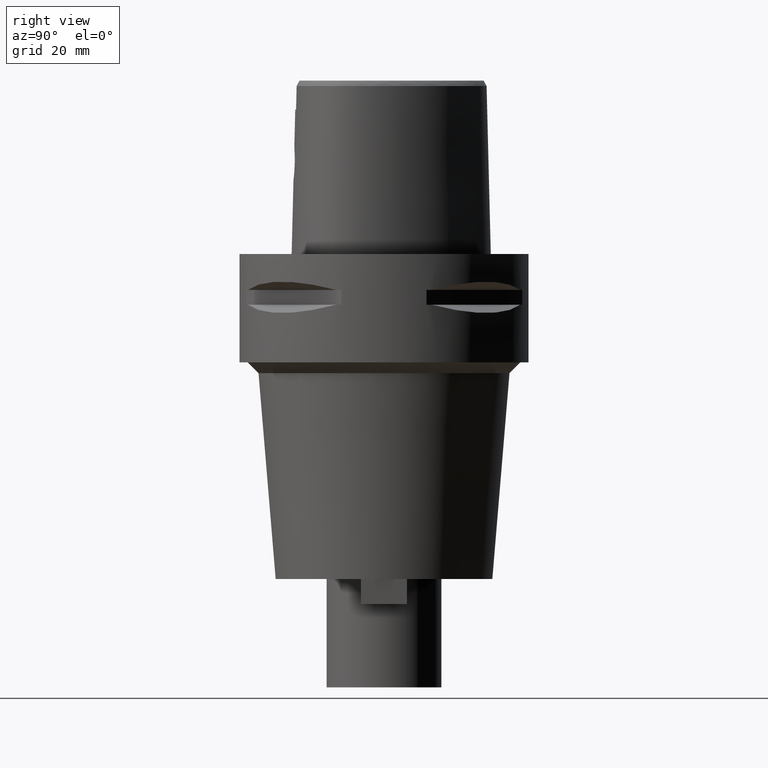
[diagram: clean part render]
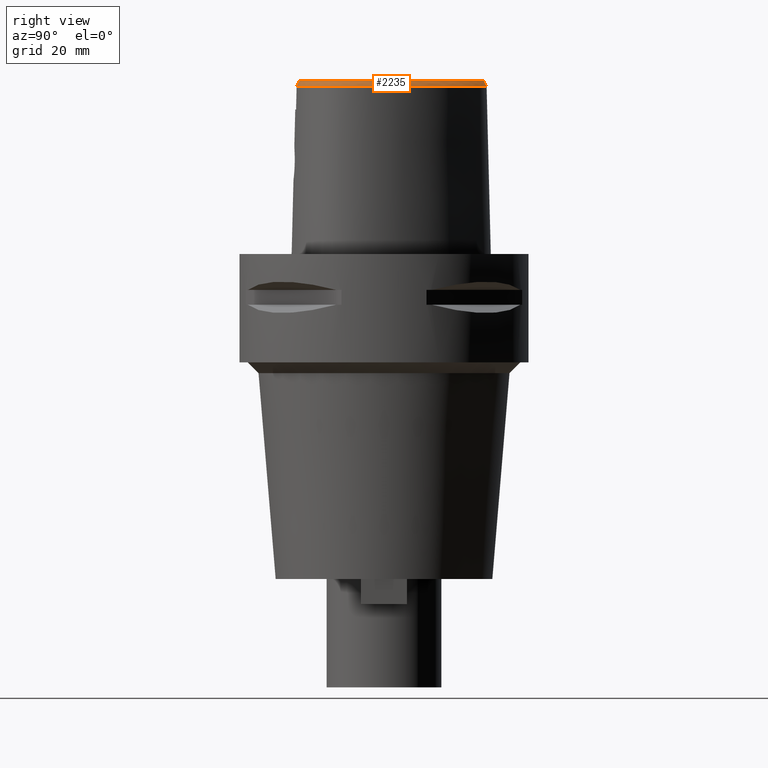
[diagram: same view with one face highlighted and labeled with its STEP entity id]
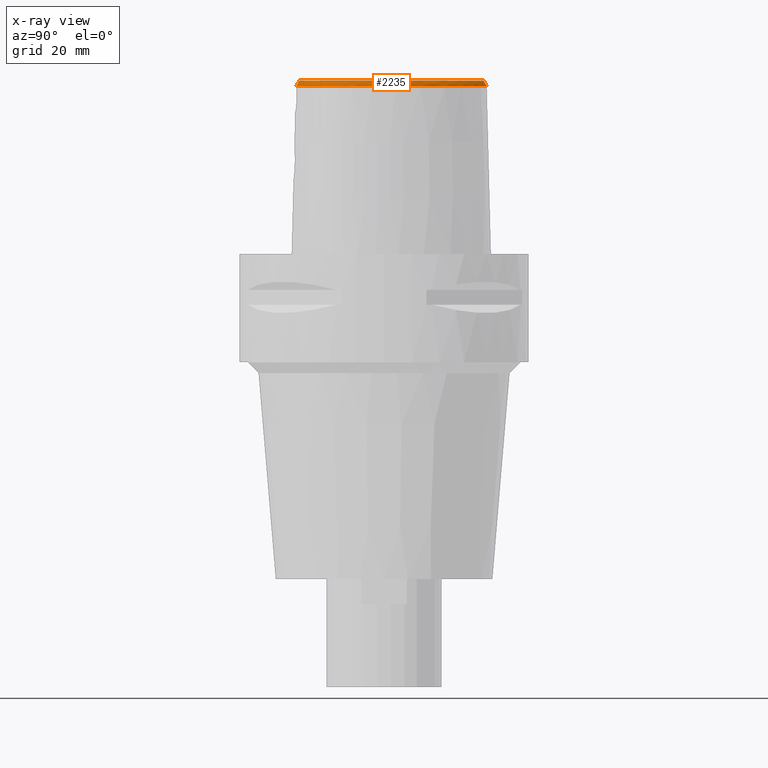
[diagram: x-ray of the same camera — body ghosted, the highlighted face saturated]
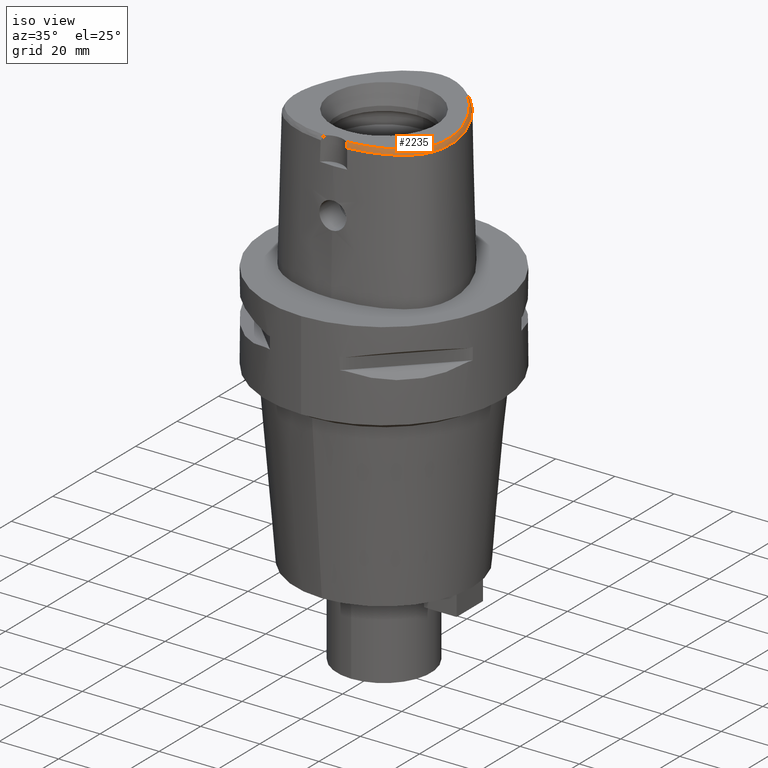
[diagram: same view with one face highlighted and labeled with its STEP entity id]
A machine part, right view. The second image highlights one B-rep face of the part: STEP entity #2235.
The next image is the same camera in x-ray: the body ghosted, the highlighted face saturated — about 0% of this face is hidden behind the body in this view.
A second angle (iso view) of the same face is appended — the face is thin or edge-on in the first view.
In plain terms, the highlighted face is a freeform B-spline surface patch.
Its self-contained STEP definition (entity closure, byte-faithful):
#65=CARTESIAN_POINT('',(-2.553408000942E-11,2.758331912251E1,4.8E1));
#70=CARTESIAN_POINT('',(-2.553408000942E-11,2.758331912251E1,4.8E1));
#71=CARTESIAN_POINT('',(4.326699493449E-1,2.758331912251E1,4.8E1));
#72=CARTESIAN_POINT('',(1.318485948688E0,2.753653647905E1,4.8E1));
#73=CARTESIAN_POINT('',(2.694254177754E0,2.731817935284E1,4.8E1));
#74=CARTESIAN_POINT('',(4.160281470665E0,2.693097800112E1,4.8E1));
#75=CARTESIAN_POINT('',(5.729899963728E0,2.634376294859E1,4.8E1));
#76=CARTESIAN_POINT('',(7.336892281381E0,2.556077075451E1,4.8E1));
#77=CARTESIAN_POINT('',(8.917380700256E0,2.461701550305E1,4.8E1));
#78=CARTESIAN_POINT('',(1.050505007378E1,2.349637574397E1,4.8E1));
#79=CARTESIAN_POINT('',(1.209768380610E1,2.219292851679E1,4.8E1));
#80=CARTESIAN_POINT('',(1.371622612238E1,2.067992734514E1,4.8E1));
#81=CARTESIAN_POINT('',(1.544240661434E1,1.884128891300E1,4.8E1));
#82=CARTESIAN_POINT('',(1.727354484628E1,1.660624915320E1,4.8E1));
#83=CARTESIAN_POINT('',(1.920166337709E1,1.387305823028E1,4.8E1));
#84=CARTESIAN_POINT('',(2.104405437824E1,1.077957101820E1,4.8E1));
#85=CARTESIAN_POINT('',(2.258310938534E1,7.663562332431E0,4.8E1));
#86=CARTESIAN_POINT('',(2.371743268842E1,4.864145325005E0,4.8E1));
#87=CARTESIAN_POINT('',(2.453549848259E1,2.372083781543E0,4.8E1));
#88=CARTESIAN_POINT('',(2.511277394399E1,1.251477481481E-1,4.8E1));
#89=CARTESIAN_POINT('',(2.550395460115E1,-1.958677323131E0,4.8E1));
#90=CARTESIAN_POINT('',(2.573345526789E1,-3.925286296897E0,4.8E1));
#91=CARTESIAN_POINT('',(2.581208330671E1,-5.793995830401E0,4.8E1));
#92=CARTESIAN_POINT('',(2.574079108837E1,-7.599200667665E0,4.8E1));
#93=CARTESIAN_POINT('',(2.551425080943E1,-9.310803689701E0,4.8E1));
#94=CARTESIAN_POINT('',(2.515505768593E1,-1.084039048168E1,4.8E1));
#95=CARTESIAN_POINT('',(2.468941085513E1,-1.219340370539E1,4.8E1));
#96=CARTESIAN_POINT('',(2.412882901727E1,-1.340338267525E1,4.8E1));
#97=CARTESIAN_POINT('',(2.346251357048E1,-1.451693224168E1,4.8E1));
#98=CARTESIAN_POINT('',(2.264600657251E1,-1.560517526553E1,4.8E1));
#99=CARTESIAN_POINT('',(2.165057333295E1,-1.668266342738E1,4.8E1));
#100=CARTESIAN_POINT('',(2.044142785332E1,-1.775361414779E1,4.8E1));
#101=CARTESIAN_POINT('',(1.901612716011E1,-1.878697767478E1,4.8E1));
#102=CARTESIAN_POINT('',(1.744537203737E1,-1.972385265193E1,4.8E1));
#103=CARTESIAN_POINT('',(1.575144000164E1,-2.056103779785E1,4.8E1));
#104=CARTESIAN_POINT('',(1.388329261355E1,-2.132182163839E1,4.8E1));
#105=CARTESIAN_POINT('',(1.182663184217E1,-2.200009909971E1,4.8E1));
#106=CARTESIAN_POINT('',(9.509725481074E0,-2.259942561262E1,4.8E1));
#107=CARTESIAN_POINT('',(6.839893559149E0,-2.310549683689E1,4.8E1));
#108=CARTESIAN_POINT('',(4.762005887127E0,-2.335207908269E1,4.8E1));
#109=CARTESIAN_POINT('',(3.652533226355E0,-2.343985283522E1,4.8E1));
#130=CARTESIAN_POINT('',(4.472216720977E0,-2.420009030094E1,4.652069014669E1));
#131=CARTESIAN_POINT('',(4.386326982763E0,-2.410405875216E1,4.670593579445E1));
#132=CARTESIAN_POINT('',(4.210394305266E0,-2.391982043133E1,4.706255578648E1));
#133=CARTESIAN_POINT('',(3.936814437014E0,-2.366714569074E1,4.755457133290E1));
#134=CARTESIAN_POINT('',(3.748088598607E0,-2.351317392384E1,4.785607960075E1));
#135=CARTESIAN_POINT('',(3.652533226355E0,-2.343985283522E1,4.8E1));
#140=CARTESIAN_POINT('',(-1.300493308120E-11,2.841206021535E1,
4.652071719451E1));
#141=CARTESIAN_POINT('',(4.537490213628E-1,2.841206021535E1,4.652071719450E1));
#142=CARTESIAN_POINT('',(1.359739333895E0,2.836561700399E1,4.652068492419E1));
#143=CARTESIAN_POINT('',(2.798416793316E0,2.814377461717E1,4.652072027706E1));
#144=CARTESIAN_POINT('',(4.307887639499E0,2.775346072855E1,4.652071723335E1));
#145=CARTESIAN_POINT('',(5.924869929827E0,2.716263044308E1,4.652072183319E1));
#146=CARTESIAN_POINT('',(7.606376726197E0,2.635846393509E1,4.652071705165E1));
#147=CARTESIAN_POINT('',(9.250372014650E0,2.538962292784E1,4.652072163652E1));
#148=CARTESIAN_POINT('',(1.088560491412E1,2.424857119092E1,4.652071905169E1));
#149=CARTESIAN_POINT('',(1.252185350330E1,2.292325989186E1,4.652072481974E1));
#150=CARTESIAN_POINT('',(1.417180752101E1,2.139586755219E1,4.652071606140E1));
#151=CARTESIAN_POINT('',(1.592374388296E1,1.954881059155E1,4.652071986469E1));
#152=CARTESIAN_POINT('',(1.778068836460E1,1.730764528431E1,4.652070834577E1));
#153=CARTESIAN_POINT('',(1.973862266516E1,1.456620010831E1,4.652071797701E1));
#154=CARTESIAN_POINT('',(2.161193685354E1,1.146764016300E1,4.652071565102E1));
#155=CARTESIAN_POINT('',(2.320306411494E1,8.305545696281E0,4.652071754653E1));
#156=CARTESIAN_POINT('',(2.439273893495E1,5.429171501733E0,4.652072067189E1));
#157=CARTESIAN_POINT('',(2.525400230633E1,2.867289822812E0,4.652071708657E1));
#158=CARTESIAN_POINT('',(2.587058895892E1,5.356714346136E-1,4.652071524526E1));
#159=CARTESIAN_POINT('',(2.628986553808E1,-1.616722991159E0,4.652071995117E1));
#160=CARTESIAN_POINT('',(2.654226288817E1,-3.645874536726E0,4.652071251050E1));
#161=CARTESIAN_POINT('',(2.664069955943E1,-5.588996615923E0,4.652072284657E1));
#162=CARTESIAN_POINT('',(2.658231647953E1,-7.487839499206E0,4.652071787861E1));
#163=CARTESIAN_POINT('',(2.636242864393E1,-9.277335918253E0,4.652071674685E1));
#164=CARTESIAN_POINT('',(2.600546970369E1,-1.087971050716E1,4.652072175201E1));
#165=CARTESIAN_POINT('',(2.553598679842E1,-1.230721928929E1,4.652071313457E1));
#166=CARTESIAN_POINT('',(2.496411661943E1,-1.359437090237E1,4.652075888368E1));
#167=CARTESIAN_POINT('',(2.428343664836E1,-1.477858436888E1,4.652070986822E1));
#168=CARTESIAN_POINT('',(2.346248453319E1,-1.591632656551E1,4.652072011288E1));
#169=CARTESIAN_POINT('',(2.246581338304E1,-1.703985358332E1,4.652071692565E1));
#170=CARTESIAN_POINT('',(2.126821125574E1,-1.814765548893E1,4.652072040874E1));
#171=CARTESIAN_POINT('',(1.983956133964E1,-1.923330405129E1,4.652072026418E1));
#172=CARTESIAN_POINT('',(1.823083362510E1,-2.023730442068E1,4.652071810262E1));
#173=CARTESIAN_POINT('',(1.650513375439E1,-2.112762786541E1,4.652071766772E1));
#174=CARTESIAN_POINT('',(1.462294012880E1,-2.192950778602E1,4.652071724727E1));
#175=CARTESIAN_POINT('',(1.256100400051E1,-2.264450389677E1,4.652072051589E1));
#176=CARTESIAN_POINT('',(1.025773522757E1,-2.327676388824E1,4.652070395409E1));
#177=CARTESIAN_POINT('',(7.624517635560E0,-2.381786584128E1,4.652074908391E1));
#178=CARTESIAN_POINT('',(5.565499563370E0,-2.409543509559E1,4.652064983366E1));
#179=CARTESIAN_POINT('',(4.472216720977E0,-2.420009030094E1,4.652069014669E1));
#238=DIRECTION('',(-7.389172820926E-12,-4.887572309465E-1,8.724198353989E-1));
#239=VECTOR('',#238,1.695608863382E0);
#240=CARTESIAN_POINT('',(-1.300493308120E-11,2.841206021535E1,
4.652071719451E1));
#241=LINE('',#240,#239);
#1704=CARTESIAN_POINT('',(3.652533226356E0,-2.343985283522E1,4.8E1));
#1706=VERTEX_POINT('',#1704);
#1708=VERTEX_POINT('',#65);
#1713=VERTEX_POINT('',#130);
#1718=CARTESIAN_POINT('',(-1.300493308120E-11,2.841206021535E1,
4.652071719451E1));
#1719=VERTEX_POINT('',#1718);
#1950=CARTESIAN_POINT('',(2.877077378759E0,-2.337490097326E1,4.821314349E1));
#1951=CARTESIAN_POINT('',(2.899149034166E0,-2.373007464683E1,4.757794447065E1));
#1952=CARTESIAN_POINT('',(2.921220689572E0,-2.408524832039E1,4.694274545131E1));
#1953=CARTESIAN_POINT('',(2.943292344979E0,-2.444042199395E1,4.630754643196E1));
#1954=CARTESIAN_POINT('',(3.133418777634E0,-2.335897003059E1,4.821314347594E1));
#1955=CARTESIAN_POINT('',(3.157483771768E0,-2.371401984391E1,4.757794449848E1));
#1956=CARTESIAN_POINT('',(3.181548765901E0,-2.406906965723E1,4.694274552102E1));
#1957=CARTESIAN_POINT('',(3.205613760035E0,-2.442411947055E1,4.630754654355E1));
#1958=CARTESIAN_POINT('',(3.431469930344E0,-2.333792076485E1,4.821314346343E1));
#1959=CARTESIAN_POINT('',(3.457865005835E0,-2.369280615106E1,4.757794452325E1));
#1960=CARTESIAN_POINT('',(3.484260081325E0,-2.404769153728E1,4.694274558307E1));
#1961=CARTESIAN_POINT('',(3.510655156816E0,-2.440257692349E1,4.630754664289E1));
#1962=CARTESIAN_POINT('',(4.347585608336E0,-2.326413929380E1,4.821314344601E1));
#1963=CARTESIAN_POINT('',(4.381194795003E0,-2.361844381190E1,4.757794455773E1));
#1964=CARTESIAN_POINT('',(4.414803981669E0,-2.397274832999E1,4.694274566945E1));
#1965=CARTESIAN_POINT('',(4.448413168336E0,-2.432705284809E1,4.630754678116E1));
#1966=CARTESIAN_POINT('',(5.613441158364E0,-2.313368819173E1,4.821314349178E1));
#1967=CARTESIAN_POINT('',(5.657186243861E0,-2.348695216029E1,4.757794446711E1));
#1968=CARTESIAN_POINT('',(5.700931329358E0,-2.384021612884E1,4.694274544244E1));
#1969=CARTESIAN_POINT('',(5.744676414855E0,-2.419348009739E1,4.630754641777E1));
#1970=CARTESIAN_POINT('',(7.376542017873E0,-2.287701674675E1,4.821314368182E1));
#1971=CARTESIAN_POINT('',(7.435073181152E0,-2.322813647288E1,4.757794409079E1));
#1972=CARTESIAN_POINT('',(7.493604344430E0,-2.357925619901E1,4.694274449976E1));
#1973=CARTESIAN_POINT('',(7.552135507708E0,-2.393037592514E1,4.630754490874E1));
#1974=CARTESIAN_POINT('',(9.055029356238E0,-2.255959982815E1,4.821314367308E1));
#1975=CARTESIAN_POINT('',(9.128452677003E0,-2.290791317061E1,4.757794410811E1));
#1976=CARTESIAN_POINT('',(9.201875997769E0,-2.325622651307E1,4.694274454314E1));
#1977=CARTESIAN_POINT('',(9.275299318534E0,-2.360453985554E1,4.630754497816E1));
#1978=CARTESIAN_POINT('',(1.063926033261E1,-2.218889152483E1,4.821314367366E1));
#1979=CARTESIAN_POINT('',(1.072766491918E1,-2.253371102444E1,4.757794410696E1));
#1980=CARTESIAN_POINT('',(1.081606950574E1,-2.287853052405E1,4.694274454026E1));
#1981=CARTESIAN_POINT('',(1.090447409231E1,-2.322335002367E1,4.630754497357E1));
#1982=CARTESIAN_POINT('',(1.212210713277E1,-2.177282449616E1,4.821314362558E1));
#1983=CARTESIAN_POINT('',(1.222560473223E1,-2.211342263293E1,4.757794420215E1));
#1984=CARTESIAN_POINT('',(1.232910233169E1,-2.245402076969E1,4.694274477873E1));
#1985=CARTESIAN_POINT('',(1.243259993115E1,-2.279461890645E1,4.630754535530E1));
#1986=CARTESIAN_POINT('',(1.350107407695E1,-2.131885530253E1,4.821314363031E1));
#1987=CARTESIAN_POINT('',(1.361973313876E1,-2.165447742461E1,4.757794419279E1));
#1988=CARTESIAN_POINT('',(1.373839220058E1,-2.199009954669E1,4.694274475527E1));
#1989=CARTESIAN_POINT('',(1.385705126239E1,-2.232572166878E1,4.630754531774E1));
#1990=CARTESIAN_POINT('',(1.477482726810E1,-2.083448902978E1,4.821314367376E1));
#1991=CARTESIAN_POINT('',(1.490872777902E1,-2.116433227117E1,4.757794410677E1));
#1992=CARTESIAN_POINT('',(1.504262828994E1,-2.149417551257E1,4.694274453978E1));
#1993=CARTESIAN_POINT('',(1.517652880086E1,-2.182401875397E1,4.630754497279E1));
#1994=CARTESIAN_POINT('',(1.594673450861E1,-2.032560094156E1,4.821314361691E1));
#1995=CARTESIAN_POINT('',(1.609589465790E1,-2.064883584555E1,4.757794421934E1));
#1996=CARTESIAN_POINT('',(1.624505480720E1,-2.097207074954E1,4.694274482176E1));
#1997=CARTESIAN_POINT('',(1.639421495649E1,-2.129530565354E1,4.630754542419E1));
#1998=CARTESIAN_POINT('',(1.702032778744E1,-1.979783233487E1,4.821314367253E1));
#1999=CARTESIAN_POINT('',(1.718473352495E1,-2.011359267157E1,4.757794410920E1));
#2000=CARTESIAN_POINT('',(1.734913926246E1,-2.042935300827E1,4.694274454586E1));
#2001=CARTESIAN_POINT('',(1.751354499997E1,-2.074511334496E1,4.630754498253E1));
#2002=CARTESIAN_POINT('',(1.799994924241E1,-1.925609447241E1,4.821314363726E1));
#2003=CARTESIAN_POINT('',(1.817955883948E1,-1.956346788874E1,4.757794417901E1));
#2004=CARTESIAN_POINT('',(1.835916843654E1,-1.987084130506E1,4.694274472076E1));
#2005=CARTESIAN_POINT('',(1.853877803361E1,-2.017821472138E1,4.630754526252E1));
#2006=CARTESIAN_POINT('',(1.889247133869E1,-1.870347183733E1,4.821314355822E1));
#2007=CARTESIAN_POINT('',(1.908714061617E1,-1.900154212225E1,4.757794433553E1));
#2008=CARTESIAN_POINT('',(1.928180989365E1,-1.929961240718E1,4.694274511283E1));
#2009=CARTESIAN_POINT('',(1.947647917113E1,-1.959768269210E1,4.630754589013E1));
#2010=CARTESIAN_POINT('',(1.970314547474E1,-1.814333099006E1,4.821314362184E1));
#2011=CARTESIAN_POINT('',(1.991268445821E1,-1.843115024533E1,4.757794420955E1));
#2012=CARTESIAN_POINT('',(2.012222344167E1,-1.871896950061E1,4.694274479725E1));
#2013=CARTESIAN_POINT('',(2.033176242513E1,-1.900678875589E1,4.630754538495E1));
#2014=CARTESIAN_POINT('',(2.043732325212E1,-1.757838147683E1,4.821314369526E1));
#2015=CARTESIAN_POINT('',(2.066147770410E1,-1.785497787629E1,4.757794406418E1));
#2016=CARTESIAN_POINT('',(2.088563215608E1,-1.813157427575E1,4.694274443310E1));
#2017=CARTESIAN_POINT('',(2.110978660806E1,-1.840817067521E1,4.630754480202E1));
#2018=CARTESIAN_POINT('',(2.110145602865E1,-1.700978291890E1,4.821314369453E1));
#2019=CARTESIAN_POINT('',(2.133986955747E1,-1.727419505473E1,4.757794406561E1));
#2020=CARTESIAN_POINT('',(2.157828308628E1,-1.753860719056E1,4.694274443668E1));
#2021=CARTESIAN_POINT('',(2.181669661510E1,-1.780301932639E1,4.630754480775E1));
#2022=CARTESIAN_POINT('',(2.170132601523E1,-1.643831487670E1,4.821314368286E1));
#2023=CARTESIAN_POINT('',(2.195356248995E1,-1.668958274012E1,4.757794408872E1));
#2024=CARTESIAN_POINT('',(2.220579896467E1,-1.694085060355E1,4.694274449458E1));
#2025=CARTESIAN_POINT('',(2.245803543938E1,-1.719211846697E1,4.630754490045E1));
#2026=CARTESIAN_POINT('',(2.224190463501E1,-1.586462333609E1,4.821314366108E1));
#2027=CARTESIAN_POINT('',(2.250744023652E1,-1.610180105200E1,4.757794413187E1));
#2028=CARTESIAN_POINT('',(2.277297583803E1,-1.633897876791E1,4.694274460267E1));
#2029=CARTESIAN_POINT('',(2.303851143954E1,-1.657615648381E1,4.630754507346E1));
#2030=CARTESIAN_POINT('',(2.272836696649E1,-1.528818855370E1,4.821314360661E1));
#2031=CARTESIAN_POINT('',(2.300658067266E1,-1.551036609865E1,4.757794423973E1));
#2032=CARTESIAN_POINT('',(2.328479437882E1,-1.573254364359E1,4.694274487286E1));
#2033=CARTESIAN_POINT('',(2.356300808499E1,-1.595472118854E1,4.630754550598E1));
#2034=CARTESIAN_POINT('',(2.316488447595E1,-1.470859388067E1,4.821314369269E1));
#2035=CARTESIAN_POINT('',(2.345505924661E1,-1.491491082845E1,4.757794406928E1));
#2036=CARTESIAN_POINT('',(2.374523401727E1,-1.512122777622E1,4.694274444587E1));
#2037=CARTESIAN_POINT('',(2.403540878793E1,-1.532754472399E1,4.630754482246E1));
#2038=CARTESIAN_POINT('',(2.355429728746E1,-1.412633723294E1,4.821314370609E1));
#2039=CARTESIAN_POINT('',(2.385564424823E1,-1.431597542742E1,4.757794404275E1));
#2040=CARTESIAN_POINT('',(2.415699120900E1,-1.450561362189E1,4.694274437942E1));
#2041=CARTESIAN_POINT('',(2.445833816977E1,-1.469525181636E1,4.630754471608E1));
#2042=CARTESIAN_POINT('',(2.390248548826E1,-1.353615650068E1,4.821314364737E1));
#2043=CARTESIAN_POINT('',(2.421419473957E1,-1.370823360271E1,4.757794415903E1));
#2044=CARTESIAN_POINT('',(2.452590399088E1,-1.388031070473E1,4.694274467069E1));
#2045=CARTESIAN_POINT('',(2.483761324219E1,-1.405238780675E1,4.630754518235E1));
#2046=CARTESIAN_POINT('',(2.422026403926E1,-1.292037855942E1,4.821314373858E1));
#2047=CARTESIAN_POINT('',(2.454120045718E1,-1.307455047340E1,4.757794397842E1));
#2048=CARTESIAN_POINT('',(2.486213687510E1,-1.322872238737E1,4.694274421827E1));
#2049=CARTESIAN_POINT('',(2.518307329303E1,-1.338289430134E1,4.630754445811E1));
#2050=CARTESIAN_POINT('',(2.451278195490E1,-1.226586231302E1,4.821314360986E1));
#2051=CARTESIAN_POINT('',(2.484184424002E1,-1.240182087258E1,4.757794423328E1));
#2052=CARTESIAN_POINT('',(2.517090652515E1,-1.253777943214E1,4.694274485670E1));
#2053=CARTESIAN_POINT('',(2.549996881027E1,-1.267373799170E1,4.630754548013E1));
#2054=CARTESIAN_POINT('',(2.477818917982E1,-1.157047375645E1,4.821314364193E1));
#2055=CARTESIAN_POINT('',(2.511426921529E1,-1.168800575151E1,4.757794416977E1));
#2056=CARTESIAN_POINT('',(2.545034925075E1,-1.180553774658E1,4.694274469761E1));
#2057=CARTESIAN_POINT('',(2.578642928622E1,-1.192306974164E1,4.630754522544E1));
#2058=CARTESIAN_POINT('',(2.501473619855E1,-1.083106026369E1,4.821314367911E1));
#2059=CARTESIAN_POINT('',(2.535673459239E1,-1.093004090680E1,4.757794409615E1));
#2060=CARTESIAN_POINT('',(2.569873298623E1,-1.102902154992E1,4.694274451319E1));
#2061=CARTESIAN_POINT('',(2.604073138007E1,-1.112800219303E1,4.630754493023E1));
#2062=CARTESIAN_POINT('',(2.522049707640E1,-1.004300947483E1,4.821314369110E1));
#2063=CARTESIAN_POINT('',(2.556732294336E1,-1.012343282295E1,4.757794407243E1));
#2064=CARTESIAN_POINT('',(2.591414881033E1,-1.020385617106E1,4.694274445375E1));
#2065=CARTESIAN_POINT('',(2.626097467729E1,-1.028427951918E1,4.630754483508E1));
#2066=CARTESIAN_POINT('',(2.539273556381E1,-9.202005627449E0,4.821314369845E1));
#2067=CARTESIAN_POINT('',(2.574332889031E1,-9.263944979805E0,4.757794405787E1));
#2068=CARTESIAN_POINT('',(2.609392221680E1,-9.325884332161E0,4.694274441729E1));
#2069=CARTESIAN_POINT('',(2.644451554329E1,-9.387823684517E0,4.630754477671E1));
#2070=CARTESIAN_POINT('',(2.552802313100E1,-8.303887151942E0,4.821314365710E1));
#2071=CARTESIAN_POINT('',(2.588135959712E1,-8.347490690262E0,4.757794413976E1));
#2072=CARTESIAN_POINT('',(2.623469606324E1,-8.391094228583E0,4.694274462242E1));
#2073=CARTESIAN_POINT('',(2.658803252936E1,-8.434697766904E0,4.630754510508E1));
#2074=CARTESIAN_POINT('',(2.562239660806E1,-7.343572619420E0,4.821314356491E1));
#2075=CARTESIAN_POINT('',(2.597749211018E1,-7.369080844483E0,4.757794432230E1));
#2076=CARTESIAN_POINT('',(2.633258761230E1,-7.394589069546E0,4.694274507970E1));
#2077=CARTESIAN_POINT('',(2.668768311441E1,-7.420097294610E0,4.630754583709E1));
#2078=CARTESIAN_POINT('',(2.567109102425E1,-6.316769251077E0,4.821314359715E1));
#2079=CARTESIAN_POINT('',(2.602701232456E1,-6.324475257547E0,4.757794425847E1));
#2080=CARTESIAN_POINT('',(2.638293362487E1,-6.332181264016E0,4.694274491979E1));
#2081=CARTESIAN_POINT('',(2.673885492517E1,-6.339887270486E0,4.630754558111E1));
#2082=CARTESIAN_POINT('',(2.566869888264E1,-5.221413594419E0,4.821314368663E1));
#2083=CARTESIAN_POINT('',(2.602456368584E1,-5.211643965898E0,4.757794408129E1));
#2084=CARTESIAN_POINT('',(2.638042848904E1,-5.201874337377E0,4.694274447595E1));
#2085=CARTESIAN_POINT('',(2.673629329224E1,-5.192104708856E0,4.630754487061E1));
#2086=CARTESIAN_POINT('',(2.560934514528E1,-4.053155041992E0,4.821314362525E1));
#2087=CARTESIAN_POINT('',(2.596432394810E1,-4.026304430984E0,4.757794420282E1));
#2088=CARTESIAN_POINT('',(2.631930275092E1,-3.999453819977E0,4.694274478038E1));
#2089=CARTESIAN_POINT('',(2.667428155375E1,-3.972603208969E0,4.630754535794E1));
#2090=CARTESIAN_POINT('',(2.548660459454E1,-2.808792476943E0,4.821314365267E1));
#2091=CARTESIAN_POINT('',(2.583992316536E1,-2.765282272357E0,4.757794414850E1));
#2092=CARTESIAN_POINT('',(2.619324173619E1,-2.721772067771E0,4.694274464432E1));
#2093=CARTESIAN_POINT('',(2.654656030701E1,-2.678261863185E0,4.630754514014E1));
#2094=CARTESIAN_POINT('',(2.529395752085E1,-1.488819593469E0,4.821314365761E1));
#2095=CARTESIAN_POINT('',(2.564488933886E1,-1.429067704933E0,4.757794413875E1));
#2096=CARTESIAN_POINT('',(2.599582115687E1,-1.369315816397E0,4.694274461990E1));
#2097=CARTESIAN_POINT('',(2.634675297489E1,-1.309563927861E0,4.630754510104E1));
#2098=CARTESIAN_POINT('',(2.502456488595E1,-9.249937172744E-2,
4.821314360289E1));
#2099=CARTESIAN_POINT('',(2.537243864991E1,-1.697656934372E-2,
4.757794424709E1));
#2100=CARTESIAN_POINT('',(2.572031241387E1,5.854623304E-2,4.694274489129E1));
#2101=CARTESIAN_POINT('',(2.606818617783E1,1.340690354237E-1,4.630754553549E1));
#2102=CARTESIAN_POINT('',(2.467231308317E1,1.376564022473E0,4.821314367033E1));
#2103=CARTESIAN_POINT('',(2.501649873429E1,1.467410352883E0,4.757794411354E1));
#2104=CARTESIAN_POINT('',(2.536068438541E1,1.558256683294E0,4.694274455675E1));
#2105=CARTESIAN_POINT('',(2.570487003654E1,1.649103013704E0,4.630754499996E1));
#2106=CARTESIAN_POINT('',(2.423173938260E1,2.912854573953E0,4.821314367553E1));
#2107=CARTESIAN_POINT('',(2.457164716632E1,3.018574436023E0,4.757794410326E1));
#2108=CARTESIAN_POINT('',(2.491155495005E1,3.124294298093E0,4.694274453099E1));
#2109=CARTESIAN_POINT('',(2.525146273378E1,3.230014160163E0,4.630754495873E1));
#2110=CARTESIAN_POINT('',(2.369872836660E1,4.508079289753E0,4.821314371365E1));
#2111=CARTESIAN_POINT('',(2.403380233612E1,4.628233740560E0,4.757794402778E1));
#2112=CARTESIAN_POINT('',(2.436887630563E1,4.748388191367E0,4.694274434190E1));
#2113=CARTESIAN_POINT('',(2.470395027515E1,4.868542642174E0,4.630754465603E1));
#2114=CARTESIAN_POINT('',(2.307125095985E1,6.150134287381E0,4.821314352682E1));
#2115=CARTESIAN_POINT('',(2.340095754228E1,6.284310646460E0,4.757794439771E1));
#2116=CARTESIAN_POINT('',(2.373066412470E1,6.418487005540E0,4.694274526859E1));
#2117=CARTESIAN_POINT('',(2.406037070712E1,6.552663364619E0,4.630754613948E1));
#2118=CARTESIAN_POINT('',(2.234793689397E1,7.827999016485E0,4.821314335634E1));
#2119=CARTESIAN_POINT('',(2.267176562352E1,7.975792631214E0,4.757794473529E1));
#2120=CARTESIAN_POINT('',(2.299559435306E1,8.123586245944E0,4.694274611424E1));
#2121=CARTESIAN_POINT('',(2.331942308261E1,8.271379860673E0,4.630754749319E1));
#2122=CARTESIAN_POINT('',(2.153538512214E1,9.516071358681E0,4.821314341707E1));
#2123=CARTESIAN_POINT('',(2.185285141089E1,9.677072784628E0,4.757794461505E1));
#2124=CARTESIAN_POINT('',(2.217031769965E1,9.838074210575E0,4.694274581304E1));
#2125=CARTESIAN_POINT('',(2.248778398840E1,9.999075636522E0,4.630754701102E1));
#2126=CARTESIAN_POINT('',(2.064418351830E1,1.118819648902E1,4.821314366120E1));
#2127=CARTESIAN_POINT('',(2.095482797771E1,1.136199267826E1,4.757794413164E1));
#2128=CARTESIAN_POINT('',(2.126547243712E1,1.153578886749E1,4.694274460207E1));
#2129=CARTESIAN_POINT('',(2.157611689652E1,1.170958505672E1,4.630754507251E1));
#2130=CARTESIAN_POINT('',(1.968288074968E1,1.282746107994E1,4.821314366938E1));
#2131=CARTESIAN_POINT('',(1.998621906232E1,1.301371694889E1,4.757794411543E1));
#2132=CARTESIAN_POINT('',(2.028955737496E1,1.319997281784E1,4.694274456148E1));
#2133=CARTESIAN_POINT('',(2.059289568759E1,1.338622868680E1,4.630754500753E1));
#2134=CARTESIAN_POINT('',(1.866137152778E1,1.441705347167E1,4.821314356970E1));
#2135=CARTESIAN_POINT('',(1.895684668498E1,1.461555116864E1,4.757794431282E1));
#2136=CARTESIAN_POINT('',(1.925232184218E1,1.481404886561E1,4.694274505593E1));
#2137=CARTESIAN_POINT('',(1.954779699938E1,1.501254656258E1,4.630754579904E1));
#2138=CARTESIAN_POINT('',(1.759221869724E1,1.593893447118E1,4.821314361101E1));
#2139=CARTESIAN_POINT('',(1.787923739073E1,1.614947846184E1,4.757794423101E1));
#2140=CARTESIAN_POINT('',(1.816625608422E1,1.636002245250E1,4.694274485100E1));
#2141=CARTESIAN_POINT('',(1.845327477771E1,1.657056644316E1,4.630754547100E1));
#2142=CARTESIAN_POINT('',(1.649447621791E1,1.737060777951E1,4.821314374167E1));
#2143=CARTESIAN_POINT('',(1.677244502853E1,1.759296728446E1,4.757794397230E1));
#2144=CARTESIAN_POINT('',(1.705041383915E1,1.781532678941E1,4.694274420292E1));
#2145=CARTESIAN_POINT('',(1.732838264976E1,1.803768629437E1,4.630754443355E1));
#2146=CARTESIAN_POINT('',(1.538308867963E1,1.869998474767E1,4.821314356007E1));
#2147=CARTESIAN_POINT('',(1.565138177343E1,1.893393192665E1,4.757794433189E1));
#2148=CARTESIAN_POINT('',(1.591967486724E1,1.916787910563E1,4.694274510372E1));
#2149=CARTESIAN_POINT('',(1.618796796105E1,1.940182628461E1,4.630754587555E1));
#2150=CARTESIAN_POINT('',(1.426775956330E1,1.992374661540E1,4.821314321171E1));
#2151=CARTESIAN_POINT('',(1.452575647807E1,2.016900637065E1,4.757794502168E1));
#2152=CARTESIAN_POINT('',(1.478375339285E1,2.041426612590E1,4.694274683164E1));
#2153=CARTESIAN_POINT('',(1.504175030763E1,2.065952588114E1,4.630754864161E1));
#2154=CARTESIAN_POINT('',(1.315978467652E1,2.103817979195E1,4.821314314507E1));
#2155=CARTESIAN_POINT('',(1.340681874803E1,2.129448407524E1,4.757794515364E1));
#2156=CARTESIAN_POINT('',(1.365385281954E1,2.155078835854E1,4.694274716221E1));
#2157=CARTESIAN_POINT('',(1.390088689105E1,2.180709264183E1,4.630754917078E1));
#2158=CARTESIAN_POINT('',(1.206913489294E1,2.204226224175E1,4.821314336913E1));
#2159=CARTESIAN_POINT('',(1.230451371915E1,2.230931611447E1,4.757794470996E1));
#2160=CARTESIAN_POINT('',(1.253989254536E1,2.257636998719E1,4.694274605080E1));
#2161=CARTESIAN_POINT('',(1.277527137158E1,2.284342385992E1,4.630754739163E1));
#2162=CARTESIAN_POINT('',(1.100435759192E1,2.293740672588E1,4.821314369804E1));
#2163=CARTESIAN_POINT('',(1.122736159781E1,2.321488450020E1,4.757794405867E1));
#2164=CARTESIAN_POINT('',(1.145036560370E1,2.349236227453E1,4.694274441930E1));
#2165=CARTESIAN_POINT('',(1.167336960959E1,2.376984004886E1,4.630754477993E1));
#2166=CARTESIAN_POINT('',(9.968471124999E0,2.372995456398E1,4.821314369823E1));
#2167=CARTESIAN_POINT('',(1.017835735718E1,2.401748918667E1,4.757794405832E1));
#2168=CARTESIAN_POINT('',(1.038824358936E1,2.430502380936E1,4.694274441840E1));
#2169=CARTESIAN_POINT('',(1.059812982154E1,2.459255843205E1,4.630754477849E1));
#2170=CARTESIAN_POINT('',(8.963285853399E0,2.442678815219E1,4.821314366877E1));
#2171=CARTESIAN_POINT('',(9.159326333478E0,2.472394212310E1,4.757794411664E1));
#2172=CARTESIAN_POINT('',(9.355366813557E0,2.502109609401E1,4.694274456450E1));
#2173=CARTESIAN_POINT('',(9.551407293636E0,2.531825006493E1,4.630754501236E1));
#2174=CARTESIAN_POINT('',(7.992586921663E0,2.503302053898E1,4.821314366204E1));
#2175=CARTESIAN_POINT('',(8.174019513920E0,2.533931909528E1,4.757794412996E1));
#2176=CARTESIAN_POINT('',(8.355452106176E0,2.564561765158E1,4.694274459789E1));
#2177=CARTESIAN_POINT('',(8.536884698433E0,2.595191620788E1,4.630754506581E1));
#2178=CARTESIAN_POINT('',(7.056379634631E0,2.555590384798E1,4.821314358321E1));
#2179=CARTESIAN_POINT('',(7.222468578199E0,2.587079289041E1,4.757794428605E1));
#2180=CARTESIAN_POINT('',(7.388557521766E0,2.618568193285E1,4.694274498889E1));
#2181=CARTESIAN_POINT('',(7.554646465334E0,2.650057097528E1,4.630754569173E1));
#2182=CARTESIAN_POINT('',(6.154466975748E0,2.600213819076E1,4.821314361742E1));
#2183=CARTESIAN_POINT('',(6.304483183897E0,2.632500068989E1,4.757794421831E1));
#2184=CARTESIAN_POINT('',(6.454499392045E0,2.664786318902E1,4.694274481920E1));
#2185=CARTESIAN_POINT('',(6.604515600194E0,2.697072568815E1,4.630754542010E1));
#2186=CARTESIAN_POINT('',(5.287279422507E0,2.637754833700E1,4.821314368104E1));
#2187=CARTESIAN_POINT('',(5.420500218111E0,2.670770224301E1,4.757794409233E1));
#2188=CARTESIAN_POINT('',(5.553721013715E0,2.703785614901E1,4.694274450362E1));
#2189=CARTESIAN_POINT('',(5.686941809319E0,2.736801005501E1,4.630754491492E1));
#2190=CARTESIAN_POINT('',(4.452456516678E0,2.668860935529E1,4.821314362052E1));
#2191=CARTESIAN_POINT('',(4.568211267769E0,2.702529061483E1,4.757794421218E1));
#2192=CARTESIAN_POINT('',(4.683966018860E0,2.736197187437E1,4.694274480383E1));
#2193=CARTESIAN_POINT('',(4.799720769951E0,2.769865313391E1,4.630754539549E1));
#2194=CARTESIAN_POINT('',(3.647527475487E0,2.694102872122E1,4.821314358718E1));
#2195=CARTESIAN_POINT('',(3.745188439797E0,2.728340243109E1,4.757794427820E1));
#2196=CARTESIAN_POINT('',(3.842849404108E0,2.762577614095E1,4.694274496921E1));
#2197=CARTESIAN_POINT('',(3.940510368419E0,2.796814985081E1,4.630754566023E1));
#2198=CARTESIAN_POINT('',(2.870886595522E0,2.713951064582E1,4.821314362969E1));
#2199=CARTESIAN_POINT('',(2.949880367983E0,2.748667213813E1,4.757794419401E1));
#2200=CARTESIAN_POINT('',(3.028874140444E0,2.783383363045E1,4.694274475833E1));
#2201=CARTESIAN_POINT('',(3.107867912905E0,2.818099512276E1,4.630754532265E1));
#2202=CARTESIAN_POINT('',(2.120511835377E0,2.728826255449E1,4.821314373881E1));
#2203=CARTESIAN_POINT('',(2.180329397386E0,2.763924221613E1,4.757794397794E1));
#2204=CARTESIAN_POINT('',(2.240146959394E0,2.799022187778E1,4.694274421707E1));
#2205=CARTESIAN_POINT('',(2.299964521402E0,2.834120153942E1,4.630754445619E1));
#2206=CARTESIAN_POINT('',(1.394449169652E0,2.739100147690E1,4.821314377210E1));
#2207=CARTESIAN_POINT('',(1.434647871245E0,2.774476912856E1,4.757794391204E1));
#2208=CARTESIAN_POINT('',(1.474846572838E0,2.809853678022E1,4.694274405198E1));
#2209=CARTESIAN_POINT('',(1.515045274431E0,2.845230443189E1,4.630754419192E1));
#2210=CARTESIAN_POINT('',(6.869435378872E-1,2.745091892513E1,4.821314370858E1));
#2211=CARTESIAN_POINT('',(7.072094720291E-1,2.780639109244E1,4.757794403781E1));
#2212=CARTESIAN_POINT('',(7.274754061709E-1,2.816186325974E1,4.694274436704E1));
#2213=CARTESIAN_POINT('',(7.477413403127E-1,2.851733542704E1,4.630754469627E1));
#2214=CARTESIAN_POINT('',(-1.552054591589E-2,2.747090358330E1,
4.821314363302E1));
#2215=CARTESIAN_POINT('',(-1.606613728764E-2,2.782697068276E1,
4.757794418742E1));
#2216=CARTESIAN_POINT('',(-1.661172865939E-2,2.818303778223E1,
4.694274474182E1));
#2217=CARTESIAN_POINT('',(-1.715732003114E-2,2.853910488170E1,
4.630754529622E1));
#2218=CARTESIAN_POINT('',(-4.984032521397E-1,2.745637755696E1,
4.821314368794E1));
#2219=CARTESIAN_POINT('',(-5.128849895737E-1,2.781201222470E1,
4.757794407867E1));
#2220=CARTESIAN_POINT('',(-5.273667270077E-1,2.816764689244E1,
4.694274446941E1));
#2221=CARTESIAN_POINT('',(-5.418484644418E-1,2.852328156018E1,
4.630754486015E1));
#2222=CARTESIAN_POINT('',(-7.583498681905E-1,2.744161808804E1,
4.821314377767E1));
#2223=CARTESIAN_POINT('',(-7.799205477828E-1,2.779679689321E1,
4.757794390101E1));
#2224=CARTESIAN_POINT('',(-8.014912273750E-1,2.815197569839E1,
4.694274402434E1));
#2225=CARTESIAN_POINT('',(-8.230619069673E-1,2.850715450356E1,
4.630754414768E1));
#2226=B_SPLINE_SURFACE_WITH_KNOTS('',3,3,((#1950,#1951,#1952,#1953),(#1954,
#1955,#1956,#1957),(#1958,#1959,#1960,#1961),(#1962,#1963,#1964,#1965),(#1966,
#1967,#1968,#1969),(#1970,#1971,#1972,#1973),(#1974,#1975,#1976,#1977),(#1978,
#1979,#1980,#1981),(#1982,#1983,#1984,#1985),(#1986,#1987,#1988,#1989),(#1990,
#1991,#1992,#1993),(#1994,#1995,#1996,#1997),(#1998,#1999,#2000,#2001),(#2002,
#2003,#2004,#2005),(#2006,#2007,#2008,#2009),(#2010,#2011,#2012,#2013),(#2014,
#2015,#2016,#2017),(#2018,#2019,#2020,#2021),(#2022,#2023,#2024,#2025),(#2026,
#2027,#2028,#2029),(#2030,#2031,#2032,#2033),(#2034,#2035,#2036,#2037),(#2038,
#2039,#2040,#2041),(#2042,#2043,#2044,#2045),(#2046,#2047,#2048,#2049),(#2050,
#2051,#2052,#2053),(#2054,#2055,#2056,#2057),(#2058,#2059,#2060,#2061),(#2062,
#2063,#2064,#2065),(#2066,#2067,#2068,#2069),(#2070,#2071,#2072,#2073),(#2074,
#2075,#2076,#2077),(#2078,#2079,#2080,#2081),(#2082,#2083,#2084,#2085),(#2086,
#2087,#2088,#2089),(#2090,#2091,#2092,#2093),(#2094,#2095,#2096,#2097),(#2098,
#2099,#2100,#2101),(#2102,#2103,#2104,#2105),(#2106,#2107,#2108,#2109),(#2110,
#2111,#2112,#2113),(#2114,#2115,#2116,#2117),(#2118,#2119,#2120,#2121),(#2122,
#2123,#2124,#2125),(#2126,#2127,#2128,#2129),(#2130,#2131,#2132,#2133),(#2134,
#2135,#2136,#2137),(#2138,#2139,#2140,#2141),(#2142,#2143,#2144,#2145),(#2146,
#2147,#2148,#2149),(#2150,#2151,#2152,#2153),(#2154,#2155,#2156,#2157),(#2158,
#2159,#2160,#2161),(#2162,#2163,#2164,#2165),(#2166,#2167,#2168,#2169),(#2170,
#2171,#2172,#2173),(#2174,#2175,#2176,#2177),(#2178,#2179,#2180,#2181),(#2182,
#2183,#2184,#2185),(#2186,#2187,#2188,#2189),(#2190,#2191,#2192,#2193),(#2194,
#2195,#2196,#2197),(#2198,#2199,#2200,#2201),(#2202,#2203,#2204,#2205),(#2206,
#2207,#2208,#2209),(#2210,#2211,#2212,#2213),(#2214,#2215,#2216,#2217),(#2218,
#2219,#2220,#2221),(#2222,#2223,#2224,#2225)),.UNSPECIFIED.,.F.,.F.,.F.,(4,1,1,
1,1,1,1,1,1,1,1,1,1,1,1,1,1,1,1,1,1,1,1,1,1,1,1,1,1,1,1,1,1,1,1,1,1,1,1,1,1,1,1,
1,1,1,1,1,1,1,1,1,1,1,1,1,1,1,1,1,1,1,1,1,1,1,4),(4,4),(-6.501344654137E-3,0.E0,
1.084806278983E-3,1.694060300471E-2,3.279639973042E-2,4.865219645615E-2,
6.450799318186E-2,8.036378990757E-2,9.621958663328E-2,1.120753833590E-1,
1.279311800848E-1,1.437869768105E-1,1.596427735362E-1,1.754985702619E-1,
1.913543669876E-1,2.072101637133E-1,2.230659604390E-1,2.389217571648E-1,
2.547775538905E-1,2.706333506162E-1,2.864891473419E-1,3.023449440676E-1,
3.182007407933E-1,3.340565375191E-1,3.499123342448E-1,3.657681309706E-1,
3.816239276963E-1,3.974797244220E-1,4.133355211477E-1,4.291913178734E-1,
4.450471145992E-1,4.609029113249E-1,4.767587080506E-1,4.926145047763E-1,
5.084703015020E-1,5.243260982277E-1,5.401818949535E-1,5.560376916792E-1,
5.718934884049E-1,5.877492851306E-1,6.036050818563E-1,6.194608785820E-1,
6.353166753077E-1,6.511724720335E-1,6.670282687592E-1,6.828840654849E-1,
6.987398622106E-1,7.145956589363E-1,7.304514556620E-1,7.463072523879E-1,
7.621630491136E-1,7.780188458393E-1,7.938746425650E-1,8.097304392907E-1,
8.255862360164E-1,8.414420327421E-1,8.572978294679E-1,8.731536261936E-1,
8.890094229193E-1,9.048652196450E-1,9.207210163707E-1,9.365768130964E-1,
9.524326098222E-1,9.682884065479E-1,9.841442032736E-1,1.E0,1.017074182963E0),(
-1.193106133316E-1,1.119310613326E0),.UNSPECIFIED.);
#2227=ORIENTED_EDGE('',*,*,#1937,.T.);
#2228=ORIENTED_EDGE('',*,*,#1920,.F.);
#2230=ORIENTED_EDGE('',*,*,#2229,.F.);
#2232=ORIENTED_EDGE('',*,*,#2231,.T.);
#2233=EDGE_LOOP('',(#2227,#2228,#2230,#2232));
#2234=FACE_OUTER_BOUND('',#2233,.F.);
#110=B_SPLINE_CURVE_WITH_KNOTS('',3,(#70,#71,#72,#73,#74,#75,#76,#77,#78,#79,
#80,#81,#82,#83,#84,#85,#86,#87,#88,#89,#90,#91,#92,#93,#94,#95,#96,#97,#98,#99,
#100,#101,#102,#103,#104,#105,#106,#107,#108,#109),.UNSPECIFIED.,.F.,.F.,(4,1,1,
1,1,1,1,1,1,1,1,1,1,1,1,1,1,1,1,1,1,1,1,1,1,1,1,1,1,1,1,1,1,1,1,1,1,4),(0.E0,
2.702702702703E-2,5.405405405405E-2,8.108108108108E-2,1.081081081081E-1,
1.351351351351E-1,1.621621621622E-1,1.891891891892E-1,2.162162162162E-1,
2.432432432432E-1,2.702702702703E-1,2.972972972973E-1,3.243243243243E-1,
3.513513513514E-1,3.783783783784E-1,4.054054054054E-1,4.324324324324E-1,
4.594594594595E-1,4.864864864865E-1,5.135135135135E-1,5.405405405405E-1,
5.675675675676E-1,5.945945945946E-1,6.216216216216E-1,6.486486486486E-1,
6.756756756757E-1,7.027027027027E-1,7.297297297297E-1,7.567567567568E-1,
7.837837837838E-1,8.108108108108E-1,8.378378378378E-1,8.648648648649E-1,
8.918918918919E-1,9.189189189189E-1,9.459459459459E-1,9.729729729730E-1,1.E0),
.UNSPECIFIED.);
#136=B_SPLINE_CURVE_WITH_KNOTS('',3,(#130,#131,#132,#133,#134,#135),
.UNSPECIFIED.,.F.,.F.,(4,1,1,4),(0.E0,3.333333333333E-1,6.666666666667E-1,1.E0),
.UNSPECIFIED.);
#180=B_SPLINE_CURVE_WITH_KNOTS('',3,(#140,#141,#142,#143,#144,#145,#146,#147,
#148,#149,#150,#151,#152,#153,#154,#155,#156,#157,#158,#159,#160,#161,#162,#163,
#164,#165,#166,#167,#168,#169,#170,#171,#172,#173,#174,#175,#176,#177,#178,
#179),.UNSPECIFIED.,.F.,.F.,(4,1,1,1,1,1,1,1,1,1,1,1,1,1,1,1,1,1,1,1,1,1,1,1,1,
1,1,1,1,1,1,1,1,1,1,1,1,4),(0.E0,2.702702702703E-2,5.405405405405E-2,
8.108108108108E-2,1.081081081081E-1,1.351351351351E-1,1.621621621622E-1,
1.891891891892E-1,2.162162162162E-1,2.432432432432E-1,2.702702702703E-1,
2.972972972973E-1,3.243243243243E-1,3.513513513514E-1,3.783783783784E-1,
4.054054054054E-1,4.324324324324E-1,4.594594594595E-1,4.864864864865E-1,
5.135135135135E-1,5.405405405405E-1,5.675675675676E-1,5.945945945946E-1,
6.216216216216E-1,6.486486486486E-1,6.756756756757E-1,7.027027027027E-1,
7.297297297297E-1,7.567567567568E-1,7.837837837838E-1,8.108108108108E-1,
8.378378378378E-1,8.648648648649E-1,8.918918918919E-1,9.189189189189E-1,
9.459459459459E-1,9.729729729730E-1,1.E0),.UNSPECIFIED.);
#1920=EDGE_CURVE('',#1708,#1706,#110,.T.);
#1937=EDGE_CURVE('',#1713,#1706,#136,.T.);
#2229=EDGE_CURVE('',#1719,#1708,#241,.T.);
#2231=EDGE_CURVE('',#1719,#1713,#180,.T.);
#2235=ADVANCED_FACE('',(#2234),#2226,.F.);